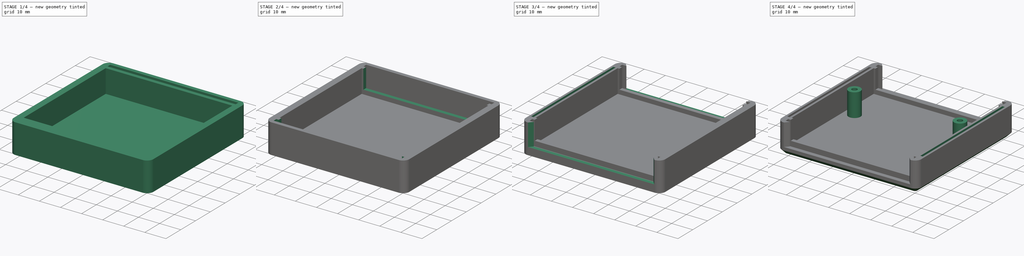
[diagram: build sequence overview — one tinted view per stage of 4, left to right]
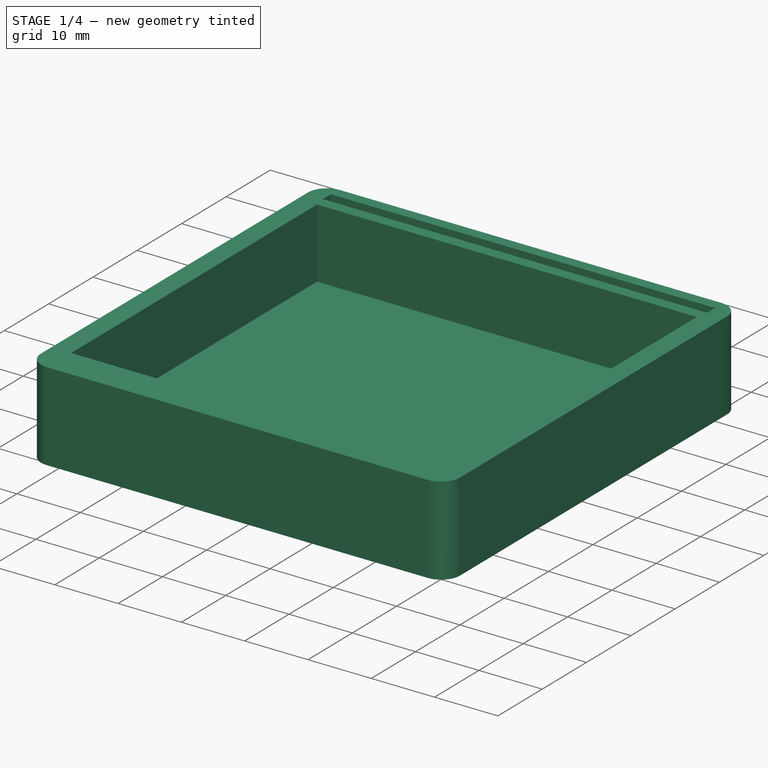
[diagram: stage 1 of 4 — iso view after this stage's code; geometry added in this stage tinted green]
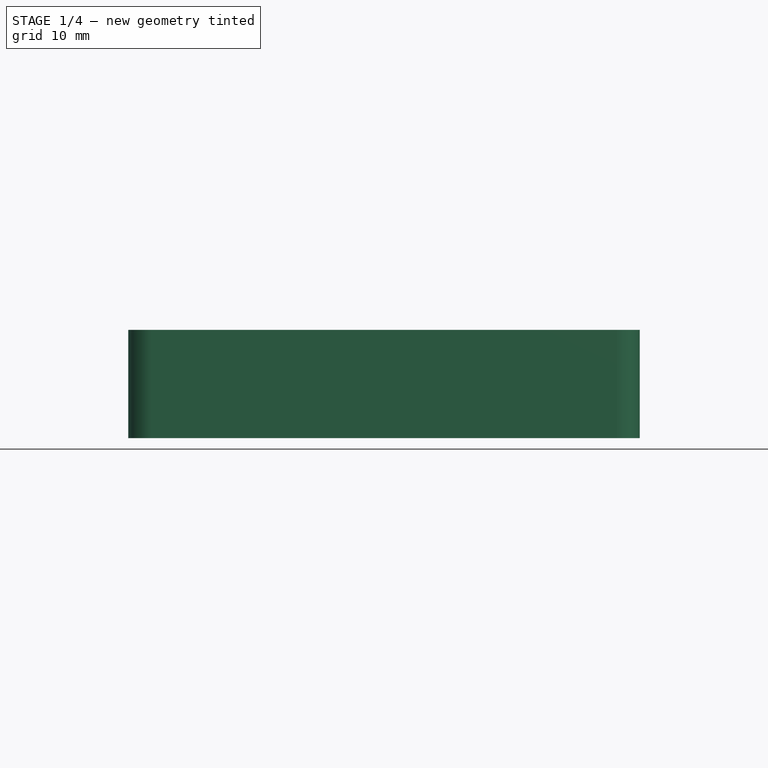
[diagram: stage 1 of 4 — front view after this stage's code; geometry added in this stage tinted green]
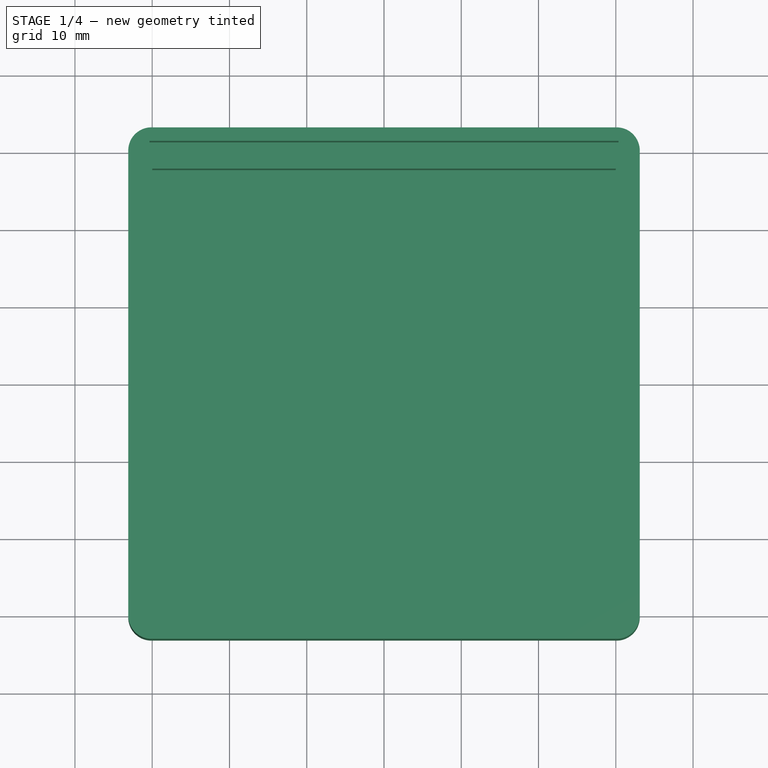
[diagram: stage 1 of 4 — top view after this stage's code; geometry added in this stage tinted green]
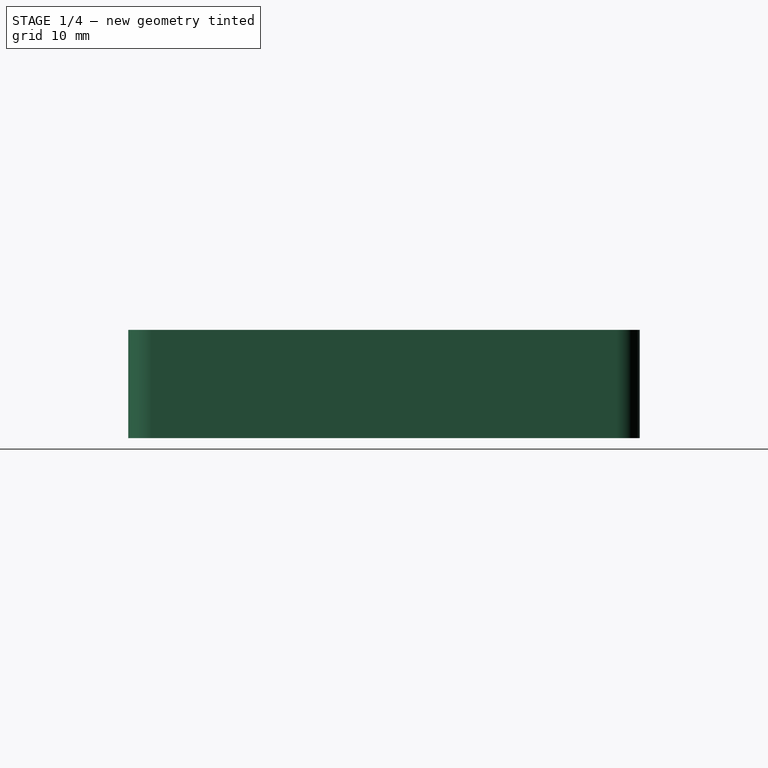
[diagram: stage 1 of 4 — right view after this stage's code; geometry added in this stage tinted green]
FCSTD DOCUMENT  (FreeCAD 1.0R39109 (Git))
Label: H1593K_top
License: All rights reserved
LicenseURL: https://en.wikipedia.org/wiki/All_rights_reserved
objects: Sketcher::SketchObject×7, PartDesign::Pocket×5, PartDesign::PolarPattern×4, PartDesign::Pad×2, Spreadsheet::Sheet×1, PartDesign::Plane×1, PartDesign::Chamfer×1, PartDesign::Body×1
note: 48 computed .brp shape members not serialized (recipe doc carries the construction recipe); baked Part::Feature solids carry a one-line shape summary decoded from their .brp

FEATURE [Spreadsheet::Sheet] Spreadsheet
  cells = A1='Outer depth; B1(OuterDepth)=66.2; C1='Inner depth; D1(InnerDepth)=55.5; E1='Front plate Depth; F1(FrontPlateDepth)=1.8; G1='Inner opening depth; H1(InnerOpeningDepth)=2; I1='Outer opening depth; J1(OuterOpeningDepth)=2; K1='Side slot depth; L1(SideSlotDepth)=55.6; A2='Outer width; B2(OuterWidth)=66.2; C2='Inner width; D2(InnerWidth)=60; E2='Front plate width; F2(FrontPlateWidth)=60.7; G2='Inner opening width; H2(InnerOpeningWidth)=58.4; I2='Outer opening outer width; J2(OuterOpeningOuterWidth)=60; K2='Side slot width; L2(SideSlotWidth)=1.1; A3='Outer height; B3(OuterHeight)=14; C3='Inner height; D3(InnerHeight)=11; E3='Front plate height; F3(FrontPlateHeight)=11.4; G3='inner opening height; H3(InnerOpeningHeight)=9; I3='Outer opening inner width; J3(OuterOpeningInnerWidth)=56.5; K3='Side slot heigh; L3(SideSlotHeight)=1.5; A4='Outer fillet; B4(OuterFillet)=3; C4='Inner fillet; E4='Front plate distance; F4(FrontDistance)=29.55; G4='inner opening distance; H4(InnerOpeningDistance)=27.7; I4='Outer opening height; J4(OuterOpeningHeight)=10.5; K4='side slot distance; L4(SideSlotDistance)=31; I5='Outer opening distance; J5(OuterOpeningDistance)=31.2; A6='Bottom Chamfer; B6(BottomChamfer)=2; D6='Post diameter; E6(PostDiameter)=5.72; D7='Post hole diameter; E7(PostHoleDiameter)=2.5; D8='Post distance; E8(PostDistance)=7.6; D9='Post spacing; E9(PostSpacing)=50
FEATURE [Sketcher::SketchObject] Sketch
  ArcFitTolerance = 1e-06
  AttachmentSupport = -> [XY_Plane]
  FullyConstrained = true
  MakeInternals = false
  MapMode = 5
  expr: Constraints[11] = Spreadsheet.OuterFillet
  expr: Constraints[5] = Spreadsheet.OuterDepth
  expr: Constraints[6] = Spreadsheet.OuterWidth
  sketch-geometry (12):
    g0: LineSegment StartX=-33.1 StartY=30.1 StartZ=0 EndX=-33.1 EndY=-30.1 EndZ=0
    g1: LineSegment StartX=-30.1 StartY=-33.1 StartZ=0 EndX=30.1 EndY=-33.1 EndZ=0
    g2: LineSegment StartX=33.1 StartY=-30.1 StartZ=0 EndX=33.1 EndY=30.1 EndZ=0
    g3: LineSegment StartX=30.1 StartY=33.1 StartZ=0 EndX=-30.1 EndY=33.1 EndZ=0
    g4: ArcOfCircle CenterX=30.1 CenterY=-30.1 CenterZ=0 NormalX=0 NormalY=0 NormalZ=1 AngleXU=0 Radius=3 StartAngle=4.71239 EndAngle=6.28319
    g5: GeomPoint [constr] X=33.1 Y=-33.1 Z=0
    g6: ArcOfCircle CenterX=-30.1 CenterY=-30.1 CenterZ=0 NormalX=0 NormalY=0 NormalZ=1 AngleXU=0 Radius=3 StartAngle=3.14159 EndAngle=4.71239
    g7: GeomPoint [constr] X=-33.1 Y=-33.1 Z=0
    g8: ArcOfCircle CenterX=-30.1 CenterY=30.1 CenterZ=0 NormalX=0 NormalY=0 NormalZ=1 AngleXU=0 Radius=3 StartAngle=1.5708 EndAngle=3.14159
    g9: GeomPoint [constr] X=-33.1 Y=33.1 Z=0
    g10: ArcOfCircle CenterX=30.1 CenterY=30.1 CenterZ=0 NormalX=0 NormalY=0 NormalZ=1 AngleXU=0 Radius=3 StartAngle=0 EndAngle=1.5708
    g11: GeomPoint [constr] X=33.1 Y=33.1 Z=0
  constraints (27):
    c: Vertical(g0)
    c: Vertical(g2)
    c: Horizontal(g1)
    c: Horizontal(g3)
    c: Symmetric(g11,g7,g-1)
    c: DistanceY(g5,g11) = 66.2
    c: DistanceX(g7,g5) = 66.2
    c: PointOnObject(g5,g2)
    c: PointOnObject(g5,g1)
    c: Tangent(g2,g4) = -1.5708
    c: Tangent(g1,g4) = -1.5708
    c: DistanceY(g1,g4) = 3
    c: PointOnObject(g7,g1)
    c: PointOnObject(g7,g0)
    c: Tangent(g1,g6) = -1.5708
    c: Tangent(g0,g6) = -1.5708
    c: PointOnObject(g9,g3)
    c: PointOnObject(g9,g0)
    c: Tangent(g3,g8) = -1.5708
    c: Tangent(g0,g8) = -1.5708
    c: PointOnObject(g11,g2)
    c: PointOnObject(g11,g3)
    c: Tangent(g2,g10) = -1.5708
    c: Tangent(g3,g10) = -1.5708
    c: Equal(g10,g4)
    c: Equal(g4,g8)
    c: Equal(g4,g6)
FEATURE [PartDesign::Pad] Pad  label="OuterCase"
  Direction = (0,0,1)
  Length = 14
  Length2 = 10
  Profile = -> Sketch
  ReferenceAxis = -> Sketch [N_Axis]
  Refine = true
  Suppressed = false
  Type = 0
  expr: Length = Spreadsheet.OuterHeight
FEATURE [PartDesign::Plane] DatumPlane  label="CaseTopPlane"
  AttachmentOffset = pos=(0,0,14) rot=(0,0,1;0rad)
  AttachmentSupport = -> [XY_Plane]
  Length = 79.44
  MapMode = 5
  Placement = pos=(0,0,14) rot=(0,0,1;0rad)
  ResizeMode = 0
  Width = 79.44
  expr: .AttachmentOffset.Base.z = Spreadsheet.OuterHeight
FEATURE [Sketcher::SketchObject] Sketch001
  ArcFitTolerance = 1e-06
  AttachmentSupport = -> [DatumPlane]
  FullyConstrained = true
  MakeInternals = false
  MapMode = 5
  Placement = pos=(0,0,14) rot=(0,0,1;0rad)
  expr: Constraints[10] = Spreadsheet.InnerWidth
  expr: Constraints[9] = Spreadsheet.InnerDepth
  sketch-geometry (4):
    g0: LineSegment StartX=-30 StartY=27.75 StartZ=0 EndX=-30 EndY=-27.75 EndZ=0
    g1: LineSegment StartX=-30 StartY=-27.75 StartZ=0 EndX=30 EndY=-27.75 EndZ=0
    g2: LineSegment StartX=30 StartY=-27.75 StartZ=0 EndX=30 EndY=27.75 EndZ=0
    g3: LineSegment StartX=30 StartY=27.75 StartZ=0 EndX=-30 EndY=27.75 EndZ=0
  constraints (11):
    c: Vertical(g0)
    c: Vertical(g2)
    c: Horizontal(g1)
    c: Horizontal(g3)
    c: Coincident(g2,g3)
    c: Coincident(g3,g0)
    c: Coincident(g2,g1)
    c: Coincident(g0,g1)
    c: Symmetric(g0,g2,g-1)
    c: DistanceY(g2,g2) = 55.5
    c: DistanceX(g0,g1) = 60
FEATURE [PartDesign::Pocket] Pocket  label="MainCavity"
  BaseFeature = -> Pad
  Direction = (0,0,-1)
  Length = 11
  Length2 = 5
  Profile = -> Sketch001
  ReferenceAxis = -> Sketch001 [N_Axis]
  Refine = true
  Suppressed = false
  Type = 0
  expr: Length = Spreadsheet.InnerHeight
FEATURE [Sketcher::SketchObject] Sketch002
  ArcFitTolerance = 1e-06
  AttachmentSupport = -> [DatumPlane]
  FullyConstrained = true
  MakeInternals = false
  MapMode = 5
  Placement = pos=(0,0,14) rot=(0,0,1;0rad)
  expr: Constraints[10] = Spreadsheet.FrontPlateWidth
  expr: Constraints[8] = Spreadsheet.FrontDistance
  expr: Constraints[9] = Spreadsheet.FrontPlateDepth
  sketch-geometry (4):
    g0: LineSegment StartX=-30.35 StartY=31.35 StartZ=0 EndX=-30.35 EndY=29.55 EndZ=0
    g1: LineSegment StartX=-30.35 StartY=29.55 StartZ=0 EndX=30.35 EndY=29.55 EndZ=0
    g2: LineSegment StartX=30.35 StartY=29.55 StartZ=0 EndX=30.35 EndY=31.35 EndZ=0
    g3: LineSegment StartX=30.35 StartY=31.35 StartZ=0 EndX=-30.35 EndY=31.35 EndZ=0
  constraints (11):
    c: Coincident(g0,g1)
    c: Coincident(g1,g2)
    c: Coincident(g2,g3)
    c: Coincident(g3,g0)
    c: Vertical(g0)
    c: Vertical(g2)
    c: Horizontal(g3)
    c: Symmetric(g1,g0,g-2)
    c: DistanceY(g-1,g1) = 29.55
    c: DistanceY(g1,g2) = 1.8
    c: DistanceX(g1,g1) = 60.7
FEATURE [PartDesign::Pocket] Pocket001  label="FrontPlateCut"
  BaseFeature = -> Pocket
  Direction = (0,0,-1)
  Length = 11.4
  Length2 = 5
  Profile = -> Sketch002
  ReferenceAxis = -> Sketch002 [N_Axis]
  Refine = true
  Suppressed = false
  Type = 0
  expr: Length = Spreadsheet.FrontPlateHeight
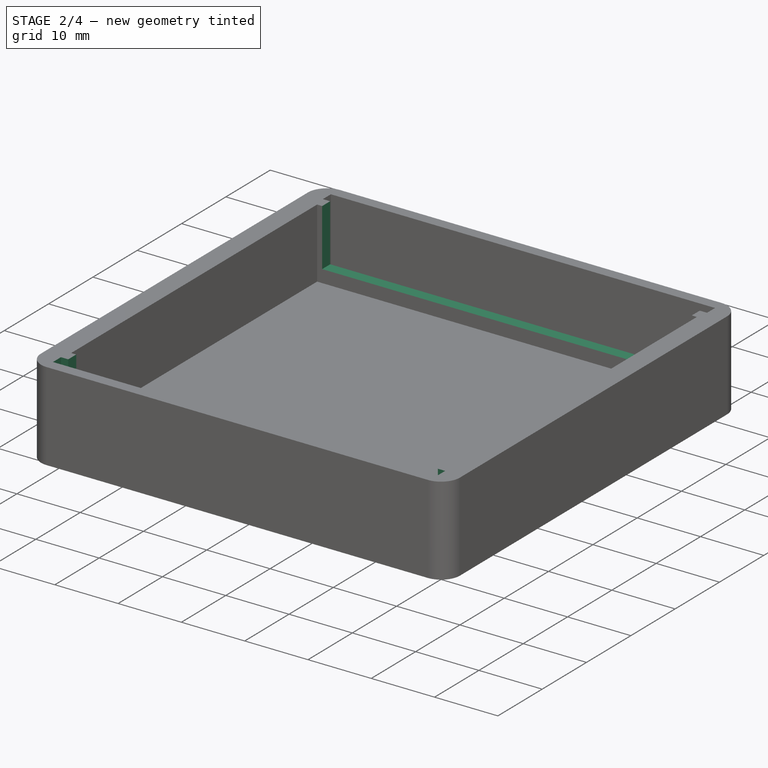
[diagram: stage 2 of 4 — iso view after this stage's code; geometry added in this stage tinted green]
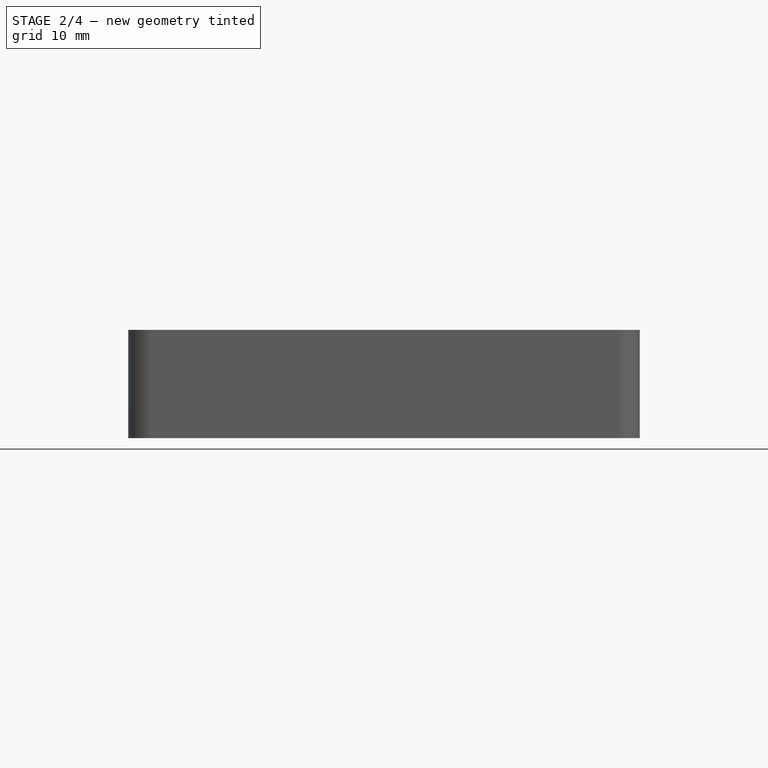
[diagram: stage 2 of 4 — front view after this stage's code; geometry added in this stage tinted green]
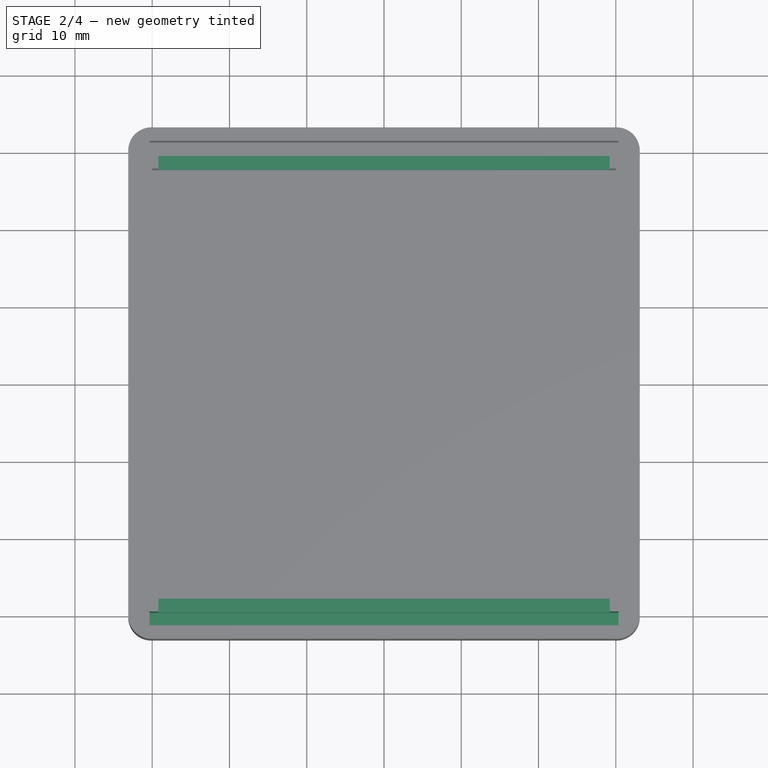
[diagram: stage 2 of 4 — top view after this stage's code; geometry added in this stage tinted green]
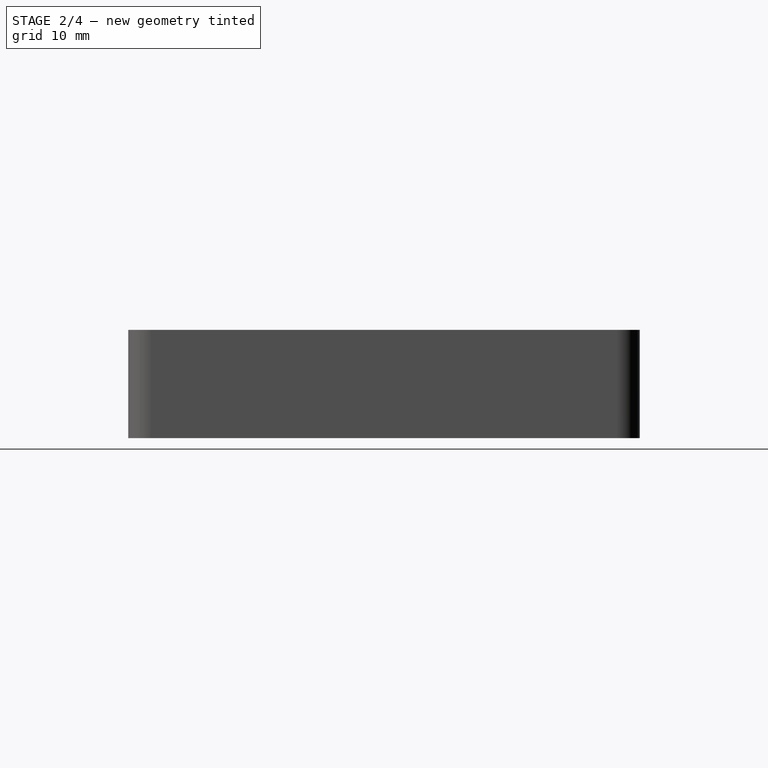
[diagram: stage 2 of 4 — right view after this stage's code; geometry added in this stage tinted green]
FEATURE [PartDesign::PolarPattern] PolarPattern  label="FrontPlateCuts"
  Angle = 360
  Axis = -> Sketch002 [N_Axis]
  BaseFeature = -> Pocket001
  Mode = 0
  Occurrences = 2
  Offset = 120
  Originals = -> [Pocket001]
  Refine = true
  Suppressed = false
  TransformMode = 0
FEATURE [Sketcher::SketchObject] Sketch003
  ArcFitTolerance = 1e-06
  AttachmentSupport = -> [DatumPlane]
  FullyConstrained = true
  MakeInternals = false
  MapMode = 5
  Placement = pos=(0,0,14) rot=(0,0,1;0rad)
  expr: Constraints[7] = Spreadsheet.InnerOpeningDistance
  expr: Constraints[8] = Spreadsheet.InnerOpeningDepth
  expr: Constraints[9] = Spreadsheet.InnerOpeningWidth
  sketch-geometry (4):
    g0: LineSegment StartX=-29.2 StartY=29.7 StartZ=0 EndX=-29.2 EndY=27.7 EndZ=0
    g1: LineSegment StartX=-29.2 StartY=27.7 StartZ=0 EndX=29.2 EndY=27.7 EndZ=0
    g2: LineSegment StartX=29.2 StartY=27.7 StartZ=0 EndX=29.2 EndY=29.7 EndZ=0
    g3: LineSegment StartX=29.2 StartY=29.7 StartZ=0 EndX=-29.2 EndY=29.7 EndZ=0
  constraints (11):
    c: Coincident(g0,g1)
    c: Coincident(g1,g2)
    c: Coincident(g2,g3)
    c: Coincident(g3,g0)
    c: Vertical(g0)
    c: Vertical(g2)
    c: Horizontal(g3)
    c: DistanceY(g-1,g1) = 27.7
    c: DistanceY(g1,g2) = 2
    c: DistanceX(g0,g1) = 58.4
    c: Symmetric(g0,g1,g-2)
FEATURE [PartDesign::Pocket] Pocket002  label="InnerFrontOpening"
  BaseFeature = -> PolarPattern
  Direction = (0,0,-1)
  Length = 9
  Length2 = 5
  Profile = -> Sketch003
  ReferenceAxis = -> Sketch003 [N_Axis]
  Refine = true
  Suppressed = false
  Type = 0
  expr: Length = Spreadsheet.InnerOpeningHeight
FEATURE [PartDesign::PolarPattern] PolarPattern001  label="InnerFrontOpenings"
  Angle = 360
  Axis = -> Sketch003 [N_Axis]
  BaseFeature = -> Pocket002
  Mode = 0
  Occurrences = 2
  Offset = 120
  Originals = -> [Pocket002]
  Refine = true
  Suppressed = false
  TransformMode = 0
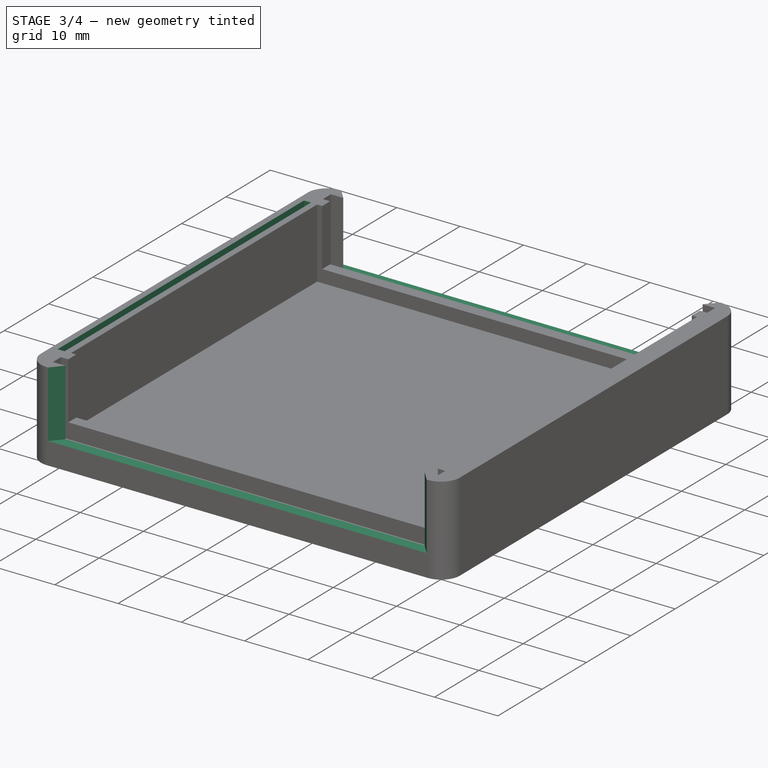
[diagram: stage 3 of 4 — iso view after this stage's code; geometry added in this stage tinted green]
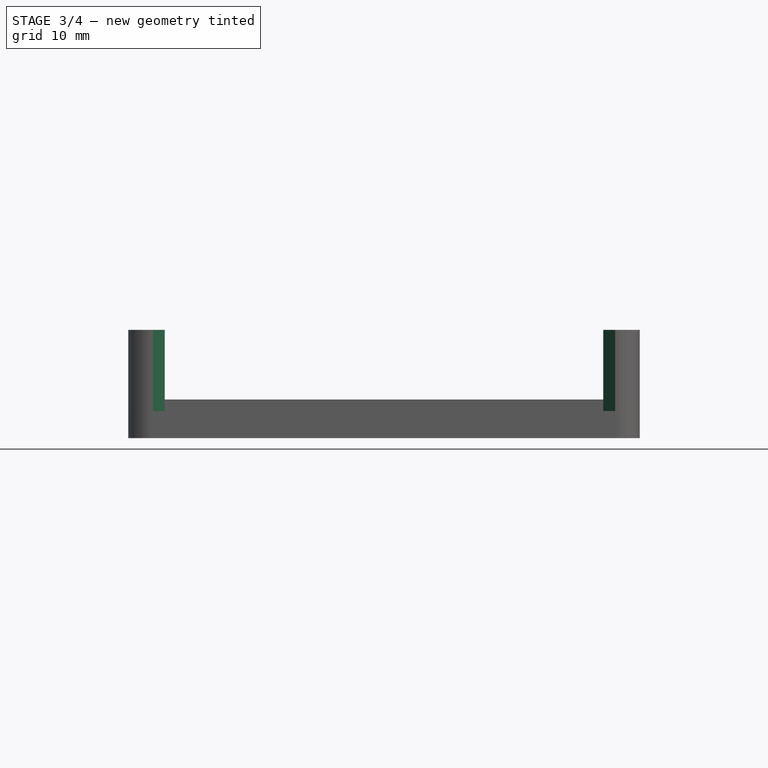
[diagram: stage 3 of 4 — front view after this stage's code; geometry added in this stage tinted green]
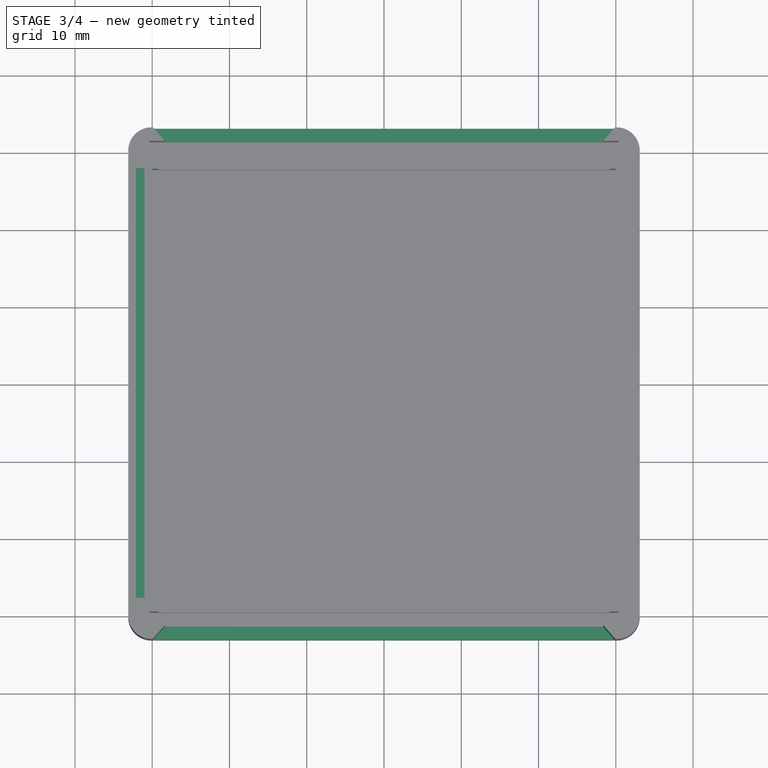
[diagram: stage 3 of 4 — top view after this stage's code; geometry added in this stage tinted green]
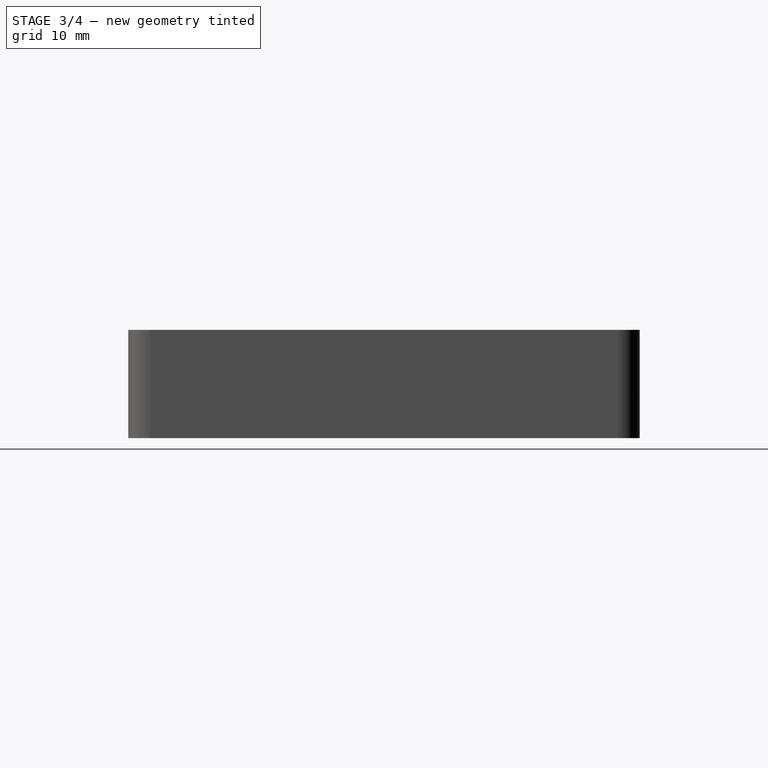
[diagram: stage 3 of 4 — right view after this stage's code; geometry added in this stage tinted green]
FEATURE [Sketcher::SketchObject] Sketch004
  ArcFitTolerance = 1e-06
  AttachmentSupport = -> [DatumPlane]
  FullyConstrained = true
  MakeInternals = false
  MapMode = 5
  Placement = pos=(0,0,14) rot=(0,0,1;0rad)
  expr: Constraints[6] = Spreadsheet.OuterOpeningDistance
  expr: Constraints[7] = Spreadsheet.OuterOpeningDepth
  expr: Constraints[8] = Spreadsheet.OuterOpeningOuterWidth
  expr: Constraints[9] = Spreadsheet.OuterOpeningInnerWidth
  sketch-geometry (4):
    g0: LineSegment StartX=-28.25 StartY=31.2 StartZ=0 EndX=28.25 EndY=31.2 EndZ=0
    g1: LineSegment StartX=-30 StartY=33.2 StartZ=0 EndX=30 EndY=33.2 EndZ=0
    g2: LineSegment StartX=-30 StartY=33.2 StartZ=0 EndX=-28.25 EndY=31.2 EndZ=0
    g3: LineSegment StartX=30 StartY=33.2 StartZ=0 EndX=28.25 EndY=31.2 EndZ=0
  constraints (10):
    c: Symmetric(g0,g0,g-2)
    c: Coincident(g2,g0)
    c: Symmetric(g1,g1,g-2)
    c: Coincident(g2,g1)
    c: Coincident(g3,g1)
    c: Coincident(g3,g0)
    c: DistanceY(g-1,g0) = 31.2
    c: DistanceY(g0,g1) = 2
    c: DistanceX(g1,g1) = 60
    c: DistanceX(g0,g0) = 56.5
FEATURE [PartDesign::Pocket] Pocket003  label="OuterFrontOpening"
  BaseFeature = -> PolarPattern001
  Direction = (0,0,-1)
  Length = 10.5
  Length2 = 5
  Profile = -> Sketch004
  ReferenceAxis = -> Sketch004 [N_Axis]
  Refine = true
  Suppressed = false
  Type = 0
  expr: Length = Spreadsheet.OuterOpeningHeight
FEATURE [PartDesign::PolarPattern] PolarPattern002  label="OuterFrontOpenings"
  Angle = 360
  Axis = -> Sketch004 [N_Axis]
  BaseFeature = -> Pocket003
  Mode = 0
  Occurrences = 2
  Offset = 120
  Originals = -> [Pocket003]
  Refine = true
  Suppressed = false
  TransformMode = 0
FEATURE [Sketcher::SketchObject] Sketch005
  ArcFitTolerance = 1e-06
  AttachmentSupport = -> [DatumPlane]
  FullyConstrained = true
  MakeInternals = false
  MapMode = 5
  Placement = pos=(0,0,14) rot=(0,0,1;0rad)
  expr: Constraints[10] = Spreadsheet.SideSlotWidth
  expr: Constraints[7] = Spreadsheet.SideSlotDistance
  expr: Constraints[8] = Spreadsheet.SideSlotDepth
  sketch-geometry (4):
    g0: LineSegment StartX=-32.1 StartY=27.8 StartZ=0 EndX=-32.1 EndY=-27.8 EndZ=0
    g1: LineSegment StartX=-32.1 StartY=-27.8 StartZ=0 EndX=-31 EndY=-27.8 EndZ=0
    g2: LineSegment StartX=-31 StartY=-27.8 StartZ=0 EndX=-31 EndY=27.8 EndZ=0
    g3: LineSegment StartX=-31 StartY=27.8 StartZ=0 EndX=-32.1 EndY=27.8 EndZ=0
  constraints (11):
    c: Coincident(g0,g1)
    c: Coincident(g1,g2)
    c: Coincident(g2,g3)
    c: Coincident(g3,g0)
    c: Vertical(g0)
    c: Horizontal(g1)
    c: Symmetric(g2,g1,g-1)
    c: DistanceX(g1,g-1) = 31
    c: DistanceY(g0,g0) = 55.6
    c: Horizontal(g3)
    c: DistanceX(g0,g2) = 1.1
FEATURE [PartDesign::Pocket] Pocket004  label="SideSlotCut"
  BaseFeature = -> PolarPattern002
  Direction = (0,0,-1)
  Length = 1.5
  Length2 = 5
  Profile = -> Sketch005
  ReferenceAxis = -> Sketch005 [N_Axis]
  Refine = true
  Suppressed = false
  Type = 0
  expr: Length = Spreadsheet.SideSlotHeight
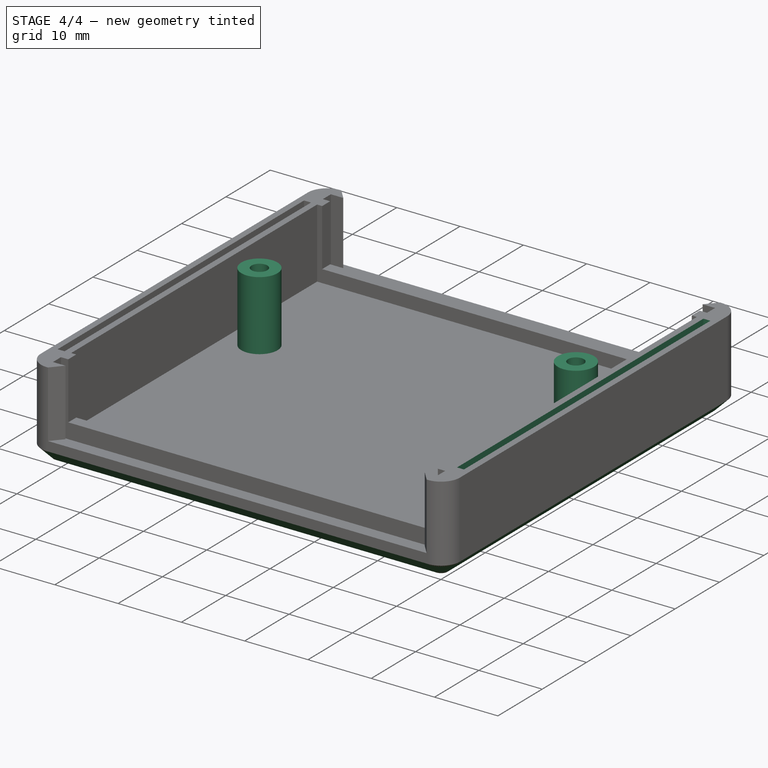
[diagram: stage 4 of 4 — iso view after this stage's code; geometry added in this stage tinted green]
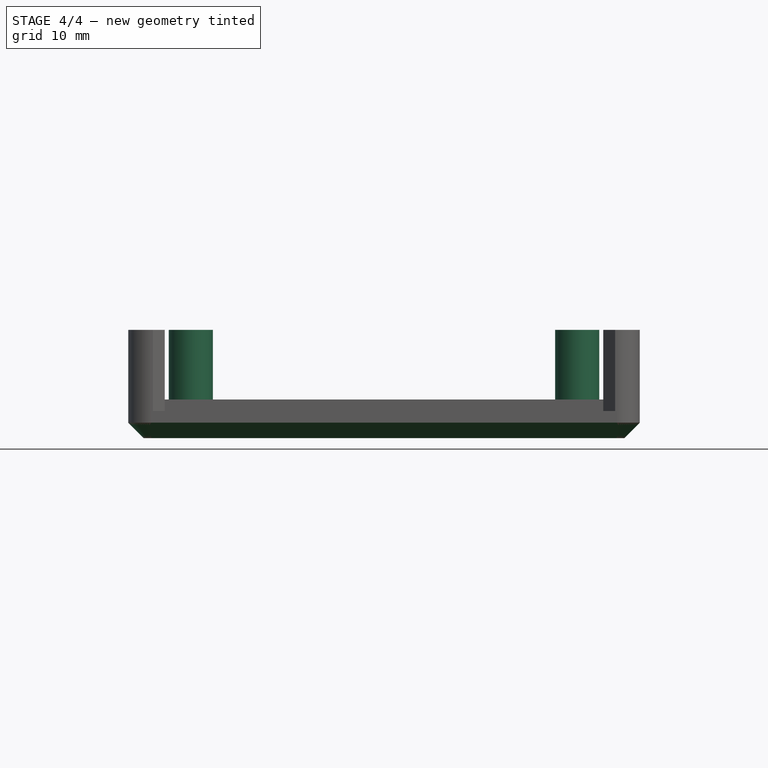
[diagram: stage 4 of 4 — front view after this stage's code; geometry added in this stage tinted green]
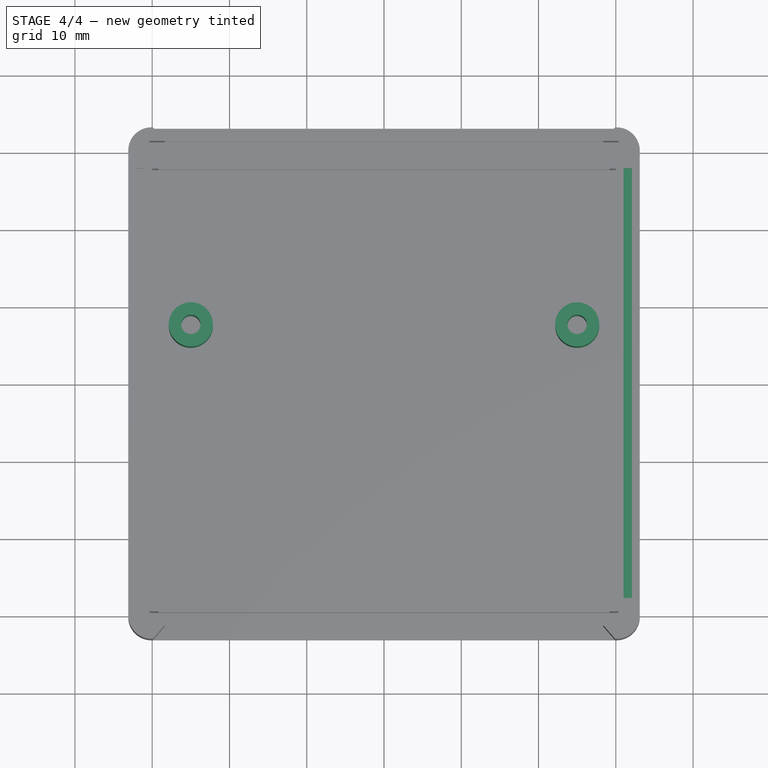
[diagram: stage 4 of 4 — top view after this stage's code; geometry added in this stage tinted green]
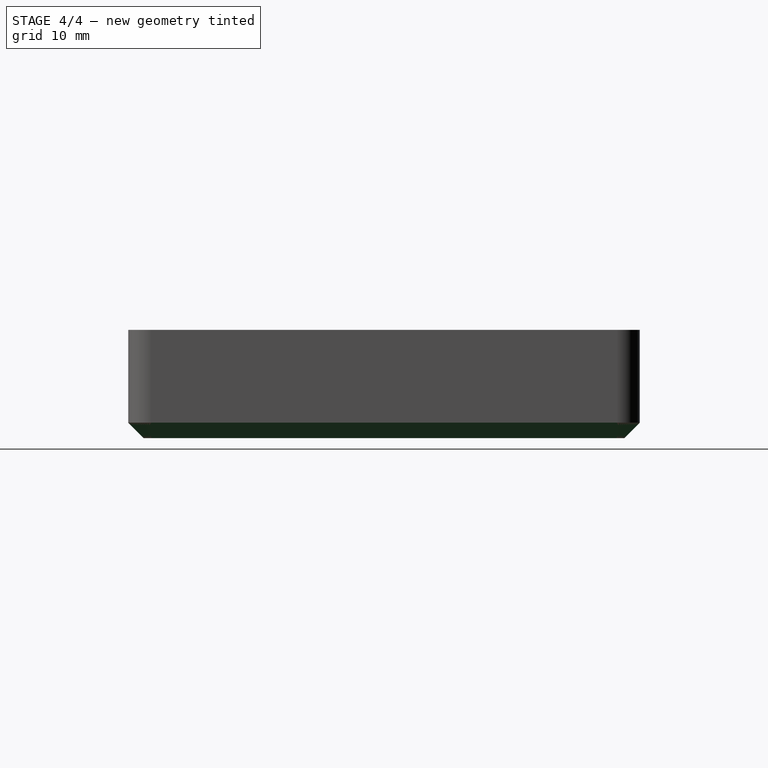
[diagram: stage 4 of 4 — right view after this stage's code; geometry added in this stage tinted green]
FEATURE [PartDesign::PolarPattern] PolarPattern003  label="SideSlotCuts"
  Angle = 360
  Axis = -> Sketch005 [N_Axis]
  BaseFeature = -> Pocket004
  Mode = 0
  Occurrences = 2
  Offset = 120
  Originals = -> [Pocket004]
  Refine = true
  Suppressed = false
  TransformMode = 0
FEATURE [Sketcher::SketchObject] Sketch006
  ArcFitTolerance = 1e-06
  AttachmentSupport = -> [DatumPlane]
  FullyConstrained = true
  MakeInternals = false
  MapMode = 5
  Placement = pos=(0,0,14) rot=(0,0,1;0rad)
  expr: Constraints[1] = Spreadsheet.PostSpacing
  expr: Constraints[2] = Spreadsheet.PostDiameter
  expr: Constraints[7] = Spreadsheet.PostHoleDiameter
  expr: Constraints[8] = Spreadsheet.PostDistance
  sketch-geometry (4):
    g0: Circle CenterX=-25 CenterY=7.6 CenterZ=0 NormalX=0 NormalY=0 NormalZ=1 AngleXU=0 Radius=2.86
    g1: Circle CenterX=25 CenterY=7.6 CenterZ=0 NormalX=0 NormalY=0 NormalZ=1 AngleXU=0 Radius=2.86
    g2: Circle CenterX=-25 CenterY=7.6 CenterZ=0 NormalX=0 NormalY=0 NormalZ=1 AngleXU=0 Radius=1.25
    g3: Circle CenterX=25 CenterY=7.6 CenterZ=0 NormalX=0 NormalY=0 NormalZ=1 AngleXU=0 Radius=1.25
  constraints (9):
    c: Symmetric(g1,g0,g-2)
    c: DistanceX(g0,g1) = 50
    c: Diameter(g0) = 5.72
    c: Coincident(g2,g0)
    c: Coincident(g3,g1)
    c: Equal(g2,g3)
    c: Equal(g0,g1)
    c: Diameter(g3) = 2.5
    c: DistanceY(g-1,g0) = 7.6
FEATURE [PartDesign::Pad] Pad001  label="CasePosts"
  BaseFeature = -> PolarPattern003
  Direction = (0,0,1)
  Length = 11
  Length2 = 10
  Profile = -> Sketch006
  ReferenceAxis = -> Sketch006 [N_Axis]
  Refine = true
  Reversed = true
  Suppressed = false
  Type = 0
  expr: Length = Spreadsheet.InnerHeight
FEATURE [PartDesign::Chamfer] Chamfer
  Angle = 45
  Base = -> Pad001 [Edge11]
  BaseFeature = -> Pad001
  ChamferType = 0
  FlipDirection = false
  Refine = true
  Size = 2
  Size2 = 1
  SupportTransform = false
  Suppressed = false
  UseAllEdges = false
  expr: Size = Spreadsheet.BottomChamfer
FEATURE [PartDesign::Body] Body
  AllowCompound = false
  Group = -> [Sketch,Pad,DatumPlane,Sketch001,Pocket,Sketch002,Pocket001,PolarPattern,Sketch003,Pocket002,PolarPattern001,Sketch004,Pocket003,PolarPattern002,Sketch005,Pocket004,PolarPattern003,Sketch006,Pad001,Chamfer]
  Origin = -> Origin
  Tip = -> Chamfer
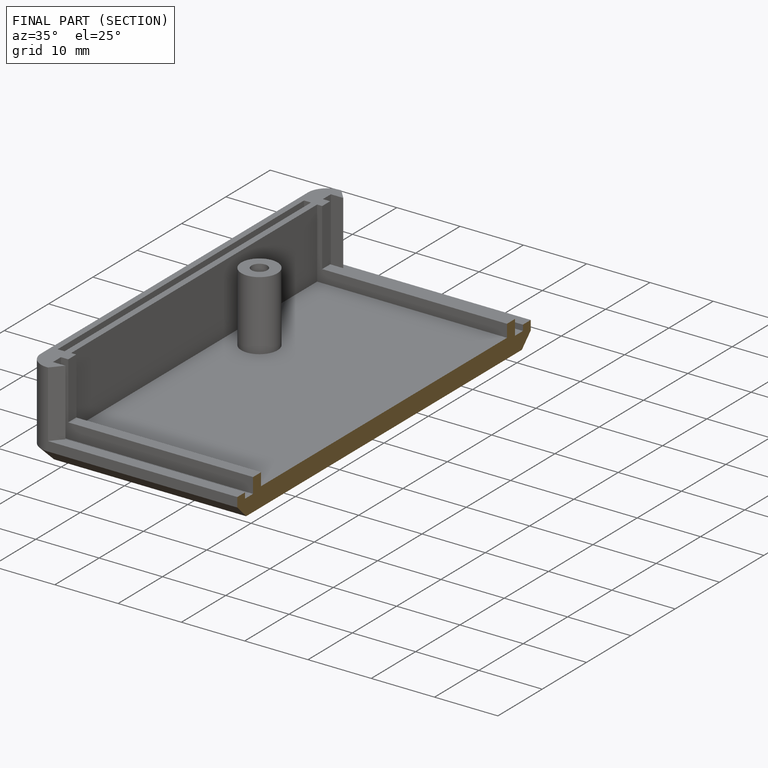
[diagram: finished part — half-section view (interior)]
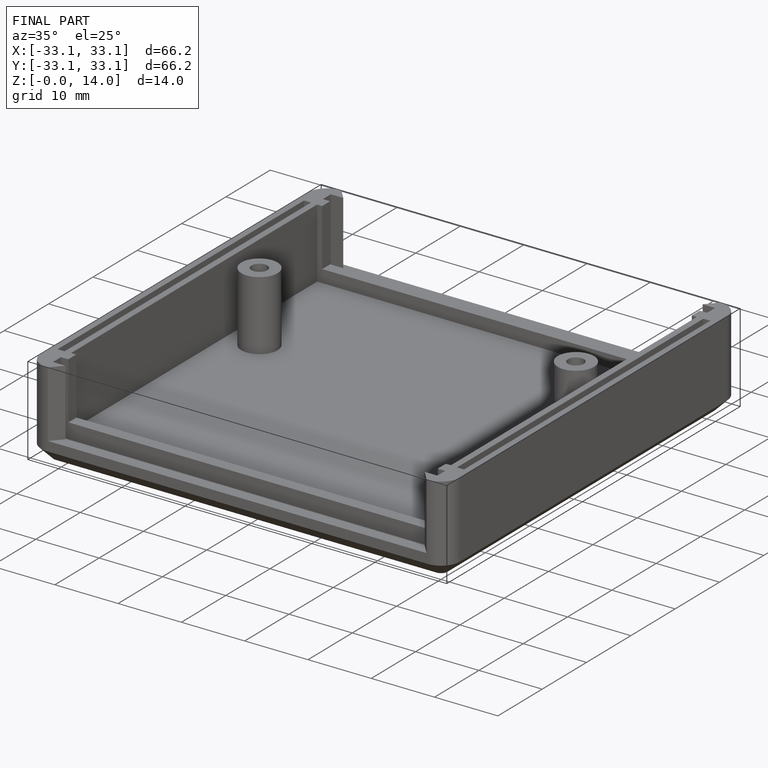
[diagram: finished part — iso view with bounding-box wireframe]
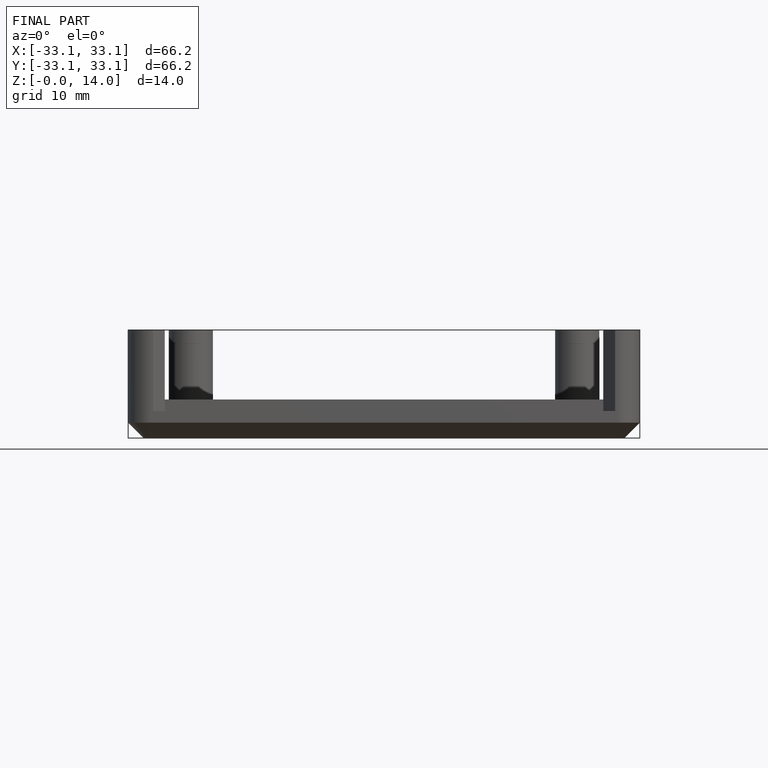
[diagram: finished part — front view with bounding-box wireframe]
